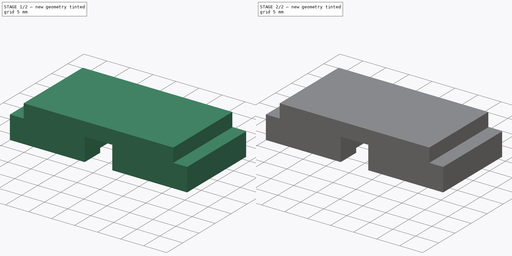
[diagram: build sequence overview — one tinted view per stage of 2, left to right]
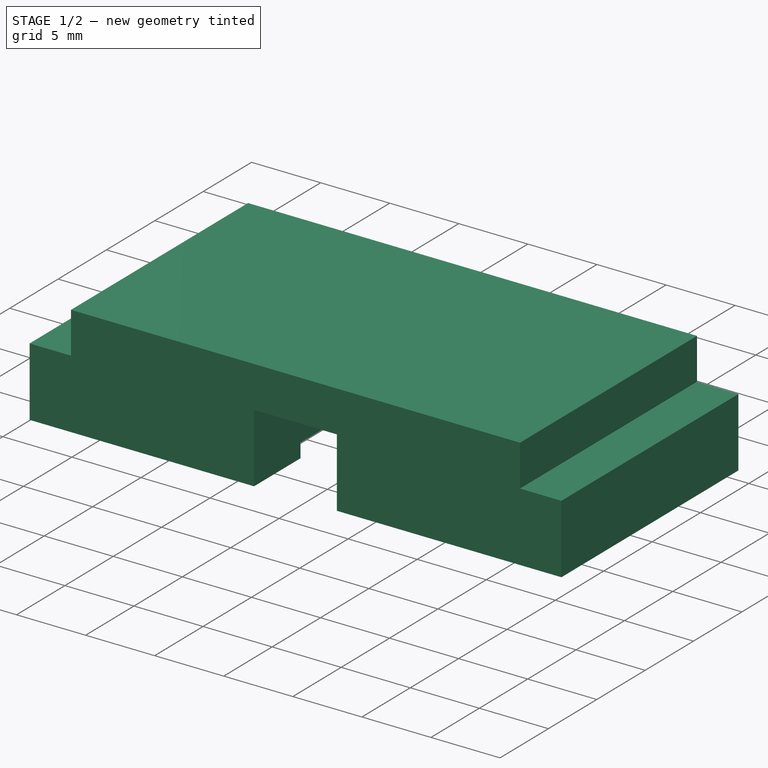
[diagram: stage 1 of 2 — iso view after this stage's code; geometry added in this stage tinted green]
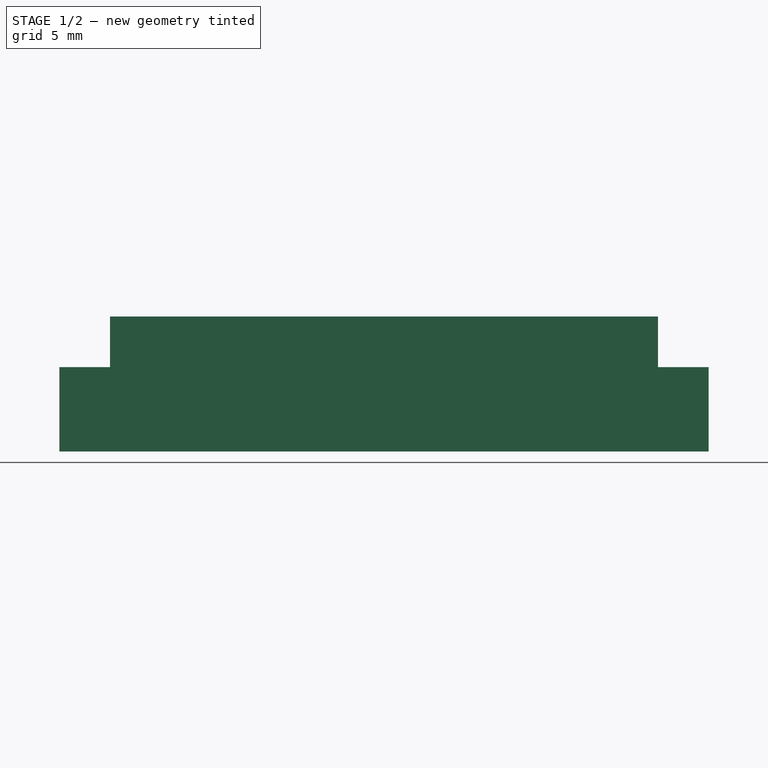
[diagram: stage 1 of 2 — front view after this stage's code; geometry added in this stage tinted green]
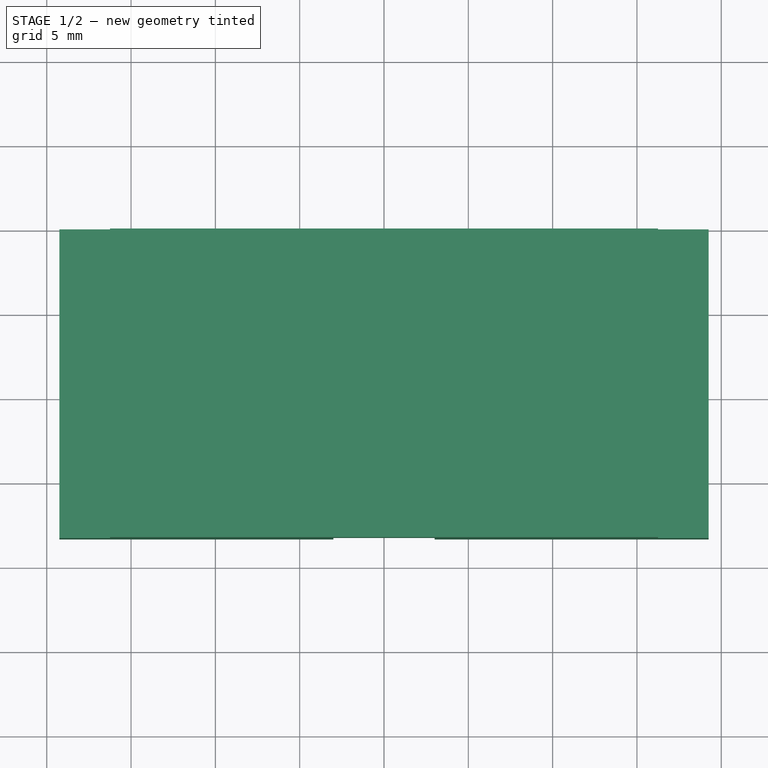
[diagram: stage 1 of 2 — top view after this stage's code; geometry added in this stage tinted green]
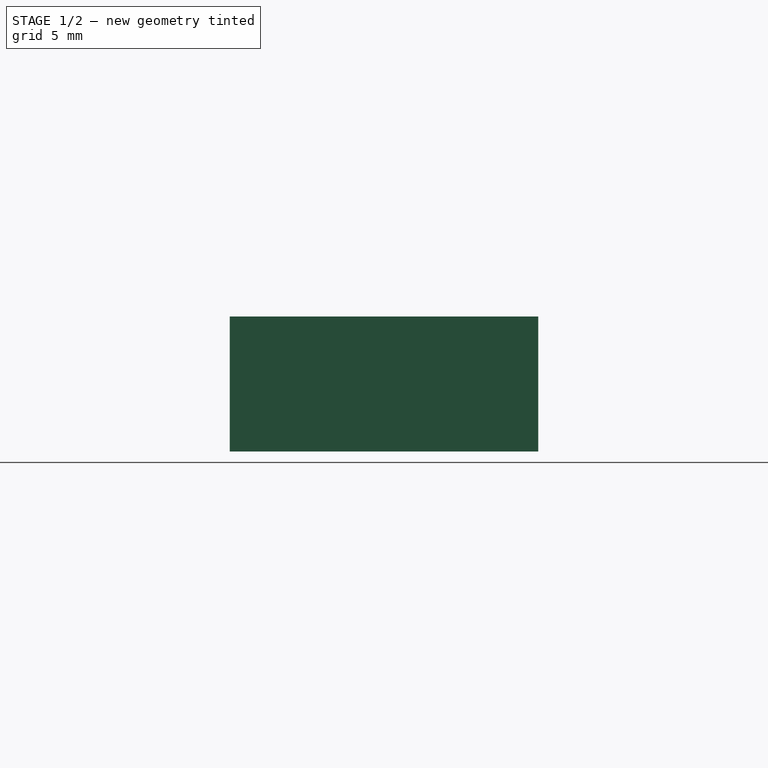
[diagram: stage 1 of 2 — right view after this stage's code; geometry added in this stage tinted green]
FCSTD DOCUMENT  (FreeCAD 0.20R29603 (Git))
Label: FeWAp_switch_holder
License: All rights reserved
LicenseURL: http://en.wikipedia.org/wiki/All_rights_reserved
objects: Sketcher::SketchObject×4, PartDesign::Pocket×2, PartDesign::Pad×1, PartDesign::Groove×1, PartDesign::Body×1
note: 13 computed .brp shape members not serialized (recipe doc carries the construction recipe); baked Part::Feature solids carry a one-line shape summary decoded from their .brp

FEATURE [Sketcher::SketchObject] Sketch
  FullyConstrained = true
  MapMode = 5
  Placement = pos=(0,0,0) rot=(1,0,0;1.5708rad)
  Support = -> [XZ_Plane]
  sketch-geometry (8):
    g0: LineSegment StartX=-19.25 StartY=0 StartZ=0 EndX=19.25 EndY=0 EndZ=0
    g1: LineSegment StartX=-19.25 StartY=0 StartZ=0 EndX=-19.25 EndY=5 EndZ=0
    g2: LineSegment StartX=-19.25 StartY=5 StartZ=0 EndX=-16.25 EndY=5 EndZ=0
    g3: LineSegment StartX=-16.25 StartY=5 StartZ=0 EndX=-16.25 EndY=8 EndZ=0
    g4: LineSegment StartX=-16.25 StartY=8 StartZ=0 EndX=16.25 EndY=8 EndZ=0
    g5: LineSegment StartX=16.25 StartY=8 StartZ=0 EndX=16.25 EndY=5 EndZ=0
    g6: LineSegment StartX=16.25 StartY=5 StartZ=0 EndX=19.25 EndY=5 EndZ=0
    g7: LineSegment StartX=19.25 StartY=5 StartZ=0 EndX=19.25 EndY=0 EndZ=0
  constraints (23):
    c: PointOnObject(g0,g-1)
    c: Distance(g0) = 38.5
    c: Symmetric(g0,g0,g-2)
    c: Coincident(g0,g1)
    c: Vertical(g1)
    c: Coincident(g1,g2)
    c: Horizontal(g2)
    c: Coincident(g2,g3)
    c: Vertical(g3)
    c: Coincident(g3,g4)
    c: Horizontal(g4)
    c: Coincident(g4,g5)
    c: Vertical(g5)
    c: Coincident(g5,g6)
    c: Horizontal(g6)
    c: Coincident(g6,g7)
    c: Coincident(g7,g0)
    c: Vertical(g7)
    c: Equal(g6,g2)
    c: Distance(g1) = 5
    c: Equal(g1,g7)
    c: Distance(g3) = 3
    c: Distance(g2) = 3
FEATURE [PartDesign::Pad] Pad
  Direction = (0,-1,2e-16)
  Length = 18.3
  Length2 = 10
  Placement = pos=(0,0,0) rot=(1,0,0;1.5708rad)
  Profile = -> Sketch
  ReferenceAxis = -> Sketch [N_Axis]
  Type = 0
FEATURE [Sketcher::SketchObject] Sketch001
  FullyConstrained = true
  MapMode = 5
  Placement = pos=(0,0,0) rot=(1,0,0;3.14159rad)
  Support = -> [Pad]
  sketch-geometry (8):
    g0: LineSegment StartX=4.25 StartY=13.5 StartZ=0 EndX=4.25 EndY=6 EndZ=0
    g1: LineSegment StartX=4.25 StartY=6 StartZ=0 EndX=-4.25 EndY=6 EndZ=0
    g2: LineSegment StartX=-4.25 StartY=6 StartZ=0 EndX=-4.25 EndY=13.5 EndZ=0
    g3: LineSegment StartX=-4.25 StartY=13.5 StartZ=0 EndX=-3 EndY=13.5 EndZ=0
    g4: LineSegment StartX=-3 StartY=13.5 StartZ=0 EndX=-3 EndY=18.5 EndZ=0
    g5: LineSegment StartX=-3 StartY=18.5 StartZ=0 EndX=3 EndY=18.5 EndZ=0
    g6: LineSegment StartX=3 StartY=18.5 StartZ=0 EndX=3 EndY=13.5 EndZ=0
    g7: LineSegment StartX=3 StartY=13.5 StartZ=0 EndX=4.25 EndY=13.5 EndZ=0
  constraints (22):
    c: Coincident(g0,g1)
    c: Coincident(g1,g2)
    c: Horizontal(g1)
    c: Vertical(g0)
    c: Vertical(g2)
    c: Symmetric(g0,g2,g-2)
    c: Distance(g0) = 7.5
    c: DistanceY(g-1,g0) = 6
    c: Coincident(g2,g3)
    c: Coincident(g3,g4)
    c: Vertical(g4)
    c: Coincident(g4,g5)
    c: Coincident(g5,g6)
    c: Vertical(g6)
    c: Coincident(g6,g7)
    c: Coincident(g7,g0)
    c: Horizontal(g7)
    c: Distance(g5) = 6
    c: Symmetric(g5,g4,g-2)
    c: Distance(g6) = 5
    c: Distance(g1) = 8.5
    c: Horizontal(g3)
FEATURE [PartDesign::Pocket] Pocket
  BaseFeature = -> Pad
  Direction = (0,2e-16,1)
  Length = 5
  Length2 = 5
  Placement = pos=(0,0,0) rot=(1,0,0;1.5708rad)
  Profile = -> Sketch001
  ReferenceAxis = -> Sketch001 [N_Axis]
  Type = 0
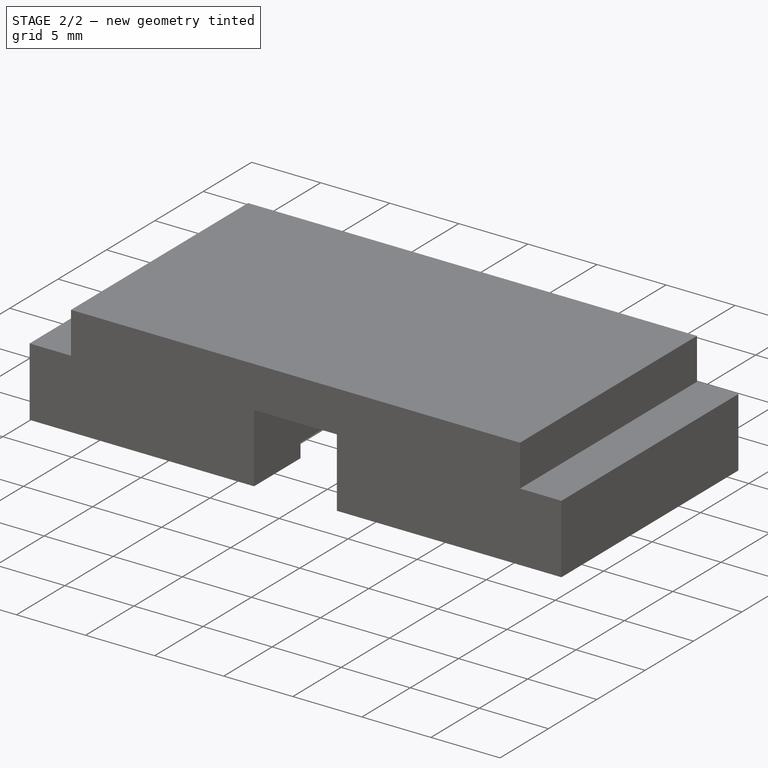
[diagram: stage 2 of 2 — iso view after this stage's code; geometry added in this stage tinted green]
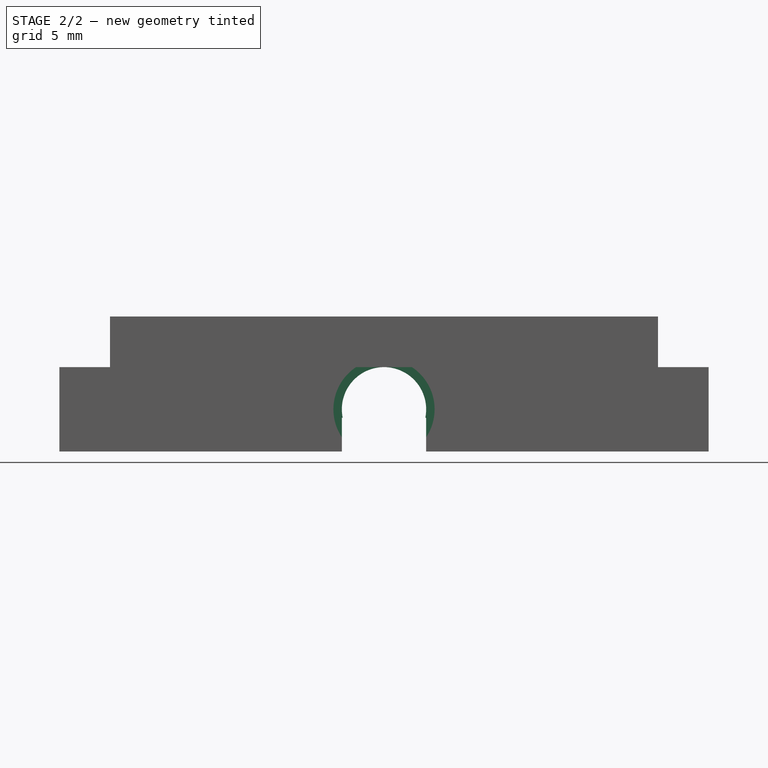
[diagram: stage 2 of 2 — front view after this stage's code; geometry added in this stage tinted green]
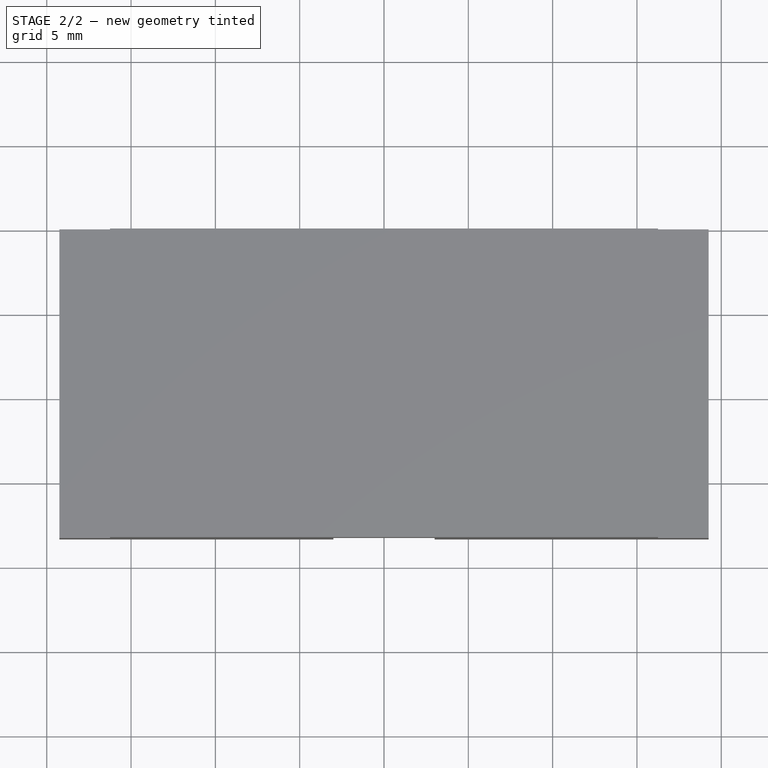
[diagram: stage 2 of 2 — top view after this stage's code; geometry added in this stage tinted green]
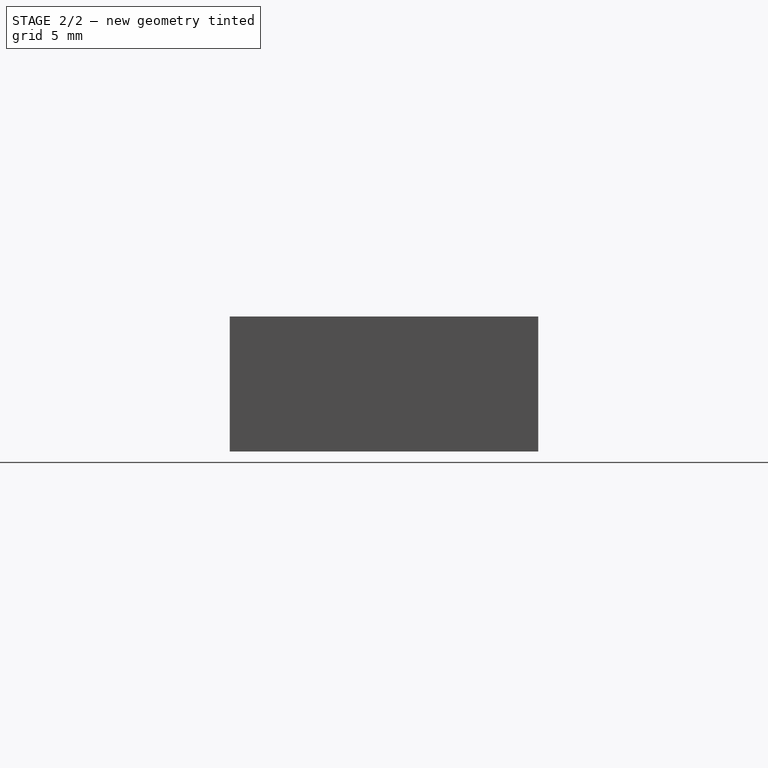
[diagram: stage 2 of 2 — right view after this stage's code; geometry added in this stage tinted green]
FEATURE [Sketcher::SketchObject] Sketch003
  FullyConstrained = false
  MapMode = 5
  Placement = pos=(0,0,0) rot=(0.57735,0.57735,0.57735;2.0944rad)
  Support = -> [YZ_Plane]
  sketch-geometry (7):
    g0: LineSegment StartX=0 StartY=2.5 StartZ=0 EndX=-31.5559 EndY=2.5 EndZ=0
    g1: LineSegment StartX=0 StartY=2.5 StartZ=0 EndX=0 EndY=5 EndZ=0
    g2: LineSegment StartX=0 StartY=5 StartZ=0 EndX=-5 EndY=5 EndZ=0
    g3: LineSegment StartX=-5 StartY=5 StartZ=0 EndX=-5 EndY=5.5 EndZ=0
    g4: LineSegment StartX=-5 StartY=5.5 StartZ=0 EndX=-6 EndY=5.5 EndZ=0
    g5: LineSegment StartX=-6 StartY=5.5 StartZ=0 EndX=-6 EndY=2.5 EndZ=0
    g6: LineSegment StartX=-6 StartY=2.5 StartZ=0 EndX=0 EndY=2.5 EndZ=0
  constraints (20):
    c: PointOnObject(g0,g-2)
    c: Horizontal(g0)
    c: DistanceY(g-1,g0) = 2.5
    c: Coincident(g1,g0)
    c: Vertical(g1)
    c: Coincident(g1,g2)
    c: Horizontal(g2)
    c: Coincident(g2,g3)
    c: Vertical(g3)
    c: Coincident(g3,g4)
    c: Horizontal(g4)
    c: Coincident(g4,g5)
    c: PointOnObject(g5,g0)
    c: Vertical(g5)
    c: Coincident(g6,g5)
    c: Coincident(g6,g1)
    c: Distance(g6) = 6
    c: Distance(g5) = 3
    c: Distance(g1) = 2.5
    c: Distance(g2) = 5
FEATURE [PartDesign::Groove] Groove
  Angle = 360
  Axis = (-1.05e-14,-31.5559,7e-15)
  Base = (-6e-16,7e-16,2.5)
  BaseFeature = -> Pocket
  Placement = pos=(0,0,0) rot=(1,0,0;1.5708rad)
  Profile = -> Sketch003
  ReferenceAxis = -> Sketch003 [Axis0]
FEATURE [Sketcher::SketchObject] Sketch004
  FullyConstrained = true
  MapMode = 5
  Placement = pos=(0,0,0) rot=(1,0,0;3.14159rad)
  Support = -> [Groove]
  sketch-geometry (4):
    g0: LineSegment StartX=-2.5 StartY=6 StartZ=0 EndX=2.5 EndY=6 EndZ=0
    g1: LineSegment StartX=2.5 StartY=6 StartZ=0 EndX=2.5 EndY=0 EndZ=0
    g2: LineSegment StartX=2.5 StartY=0 StartZ=0 EndX=-2.5 EndY=0 EndZ=0
    g3: LineSegment StartX=-2.5 StartY=0 StartZ=0 EndX=-2.5 EndY=6 EndZ=0
  constraints (11):
    c: Coincident(g0,g1)
    c: Coincident(g1,g2)
    c: Coincident(g2,g3)
    c: Coincident(g3,g0)
    c: Horizontal(g2)
    c: Vertical(g1)
    c: Vertical(g3)
    c: PointOnObject(g1,g-1)
    c: Symmetric(g0,g0,g-2)
    c: Distance(g0) = 5
    c: Distance(g1) = 6
FEATURE [PartDesign::Pocket] Pocket001
  BaseFeature = -> Groove
  Direction = (0,2e-16,1)
  Length = 2
  Length2 = 5
  Placement = pos=(0,0,0) rot=(1,0,0;1.5708rad)
  Profile = -> Sketch004
  ReferenceAxis = -> Sketch004 [N_Axis]
  Type = 0
FEATURE [PartDesign::Body] Body
  Group = -> [Sketch,Pad,Sketch001,Pocket,Sketch003,Groove,Sketch004,Pocket001]
  Origin = -> Origin
  Tip = -> Pocket001
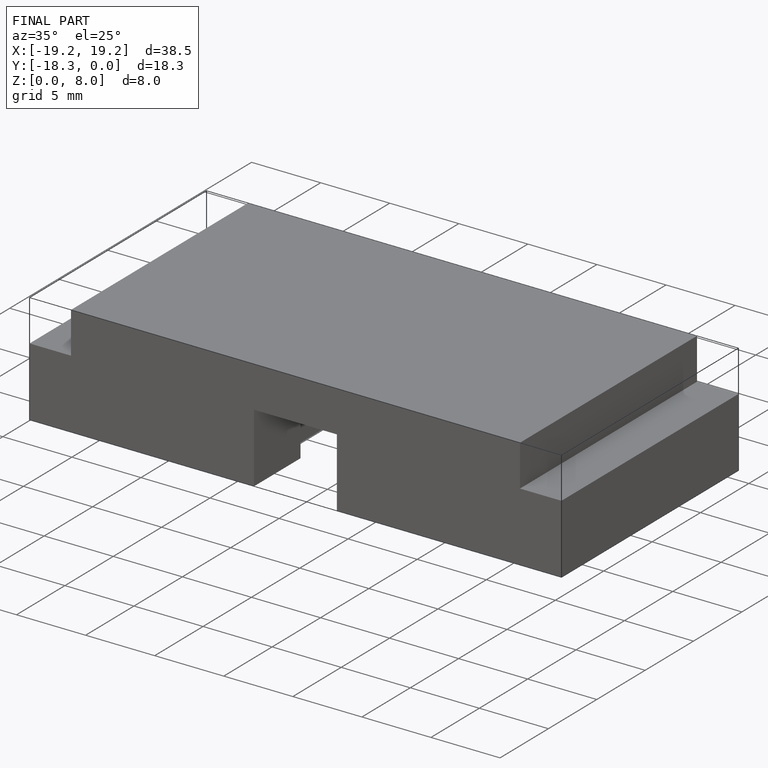
[diagram: finished part — iso view with bounding-box wireframe]
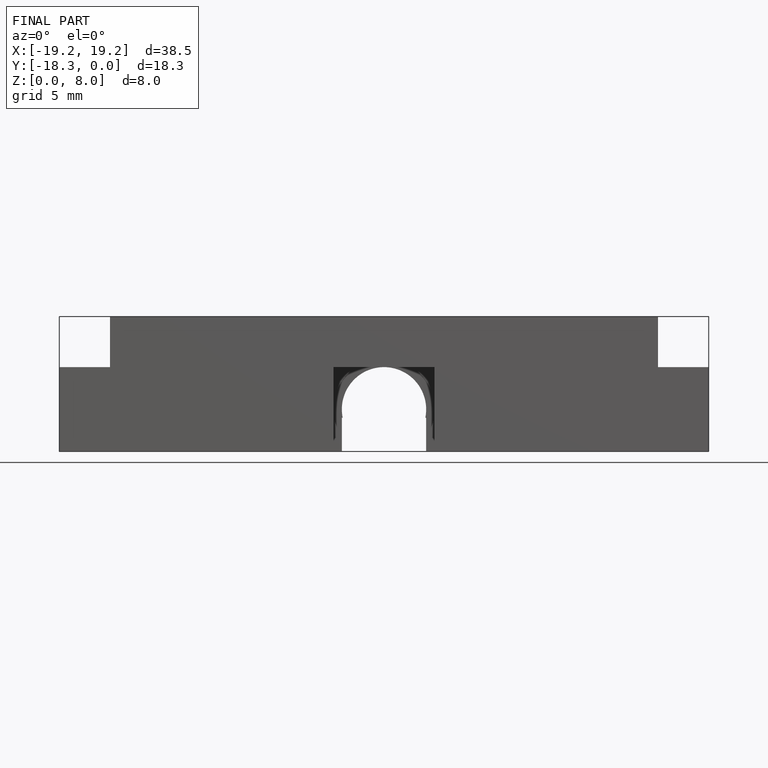
[diagram: finished part — front view with bounding-box wireframe]
